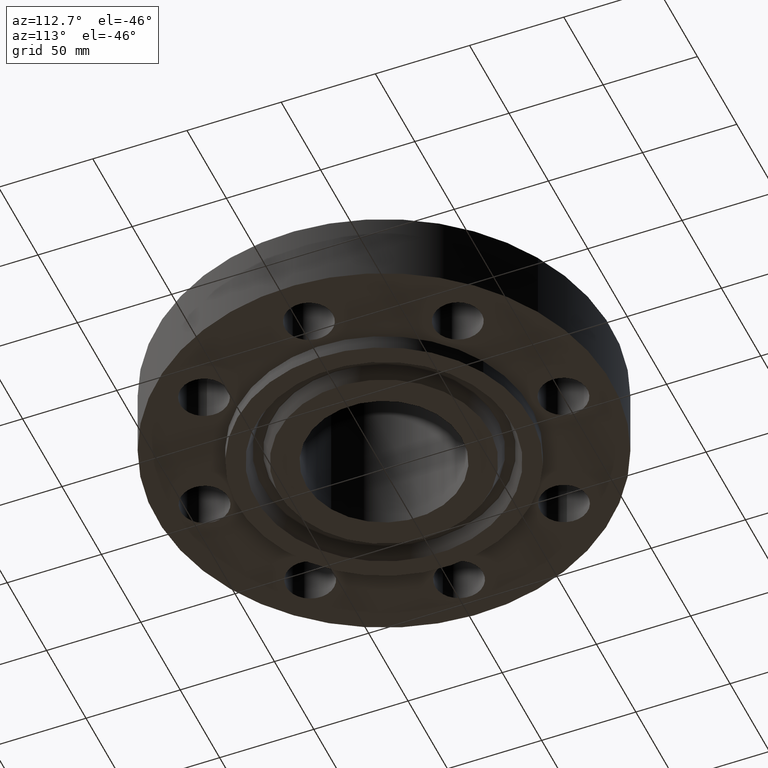
[diagram: clean part render]
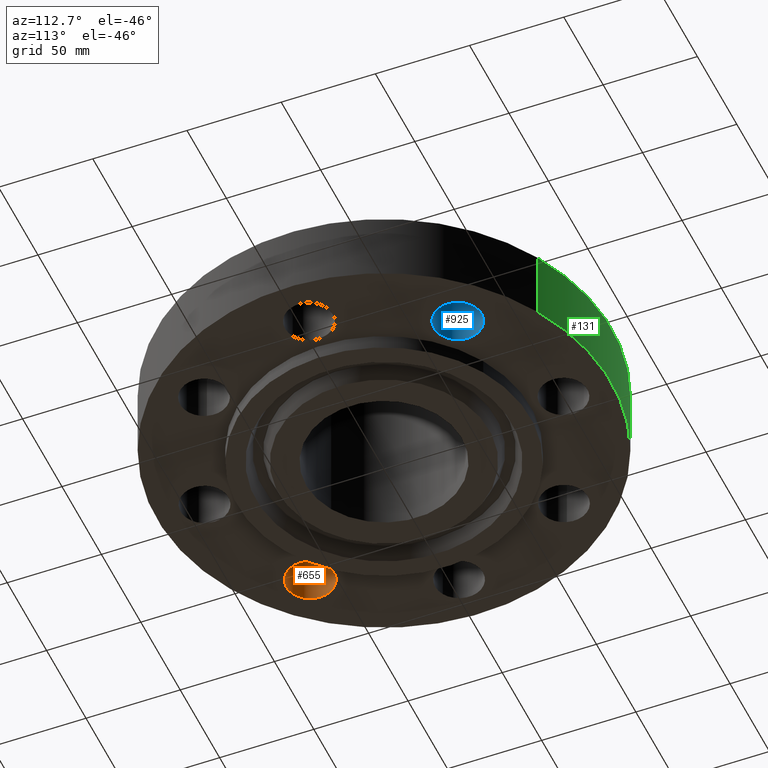
[diagram: same view with three faces highlighted in distinct colors, each labeled with its STEP entity id]
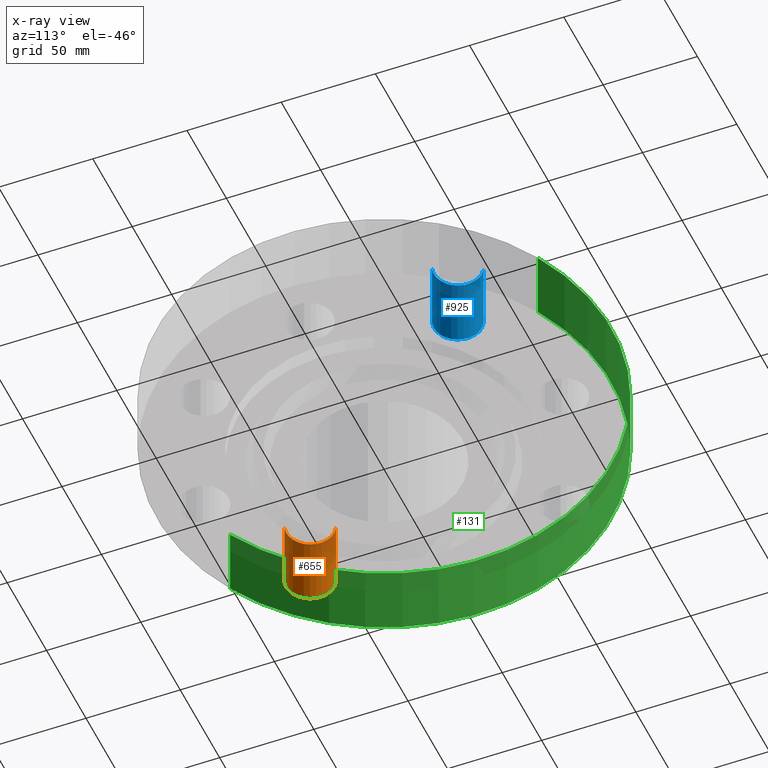
[diagram: x-ray of the same camera — body ghosted, the three highlighted faces saturated]
A machine part, auxiliary view with three faces highlighted in distinct colors.
The next image is the same camera in x-ray (body ghosted, the three faces saturated) — at least one of them is partly hidden behind the body in this view.
Their STEP definitions:

[orange] entity #655 — the highlighted cylindrical surface (edge-blend (fillet) strip) has radius 12.7 mm, axis along (0, 0, -1).
#572=AXIS2_PLACEMENT_3D('Circle Axis2P3D',#570,#571,$) ;
#628=AXIS2_PLACEMENT_3D('Cylinder Axis2P3D',#625,#626,#627) ;
#646=AXIS2_PLACEMENT_3D('Circle Axis2P3D',#644,#645,$) ;
#570=CARTESIAN_POINT('Axis2P3D Location',(-2.65165042946,-2.65165042946,0.)) ;
#574=CARTESIAN_POINT('Vertex',(-2.51088066389,-3.13142524445,0.)) ;
#576=CARTESIAN_POINT('Vertex',(-2.79242019503,-2.17187561447,0.)) ;
#625=CARTESIAN_POINT('Axis2P3D Location',(-2.65165042946,-2.65165042946,1.49606299213)) ;
#630=CARTESIAN_POINT('Line Origine',(-2.51088066389,-3.13142524445,0.750000000003)) ;
#634=CARTESIAN_POINT('Vertex',(-2.51088066389,-3.13142524445,1.50000000001)) ;
#637=CARTESIAN_POINT('Line Origine',(-2.79242019503,-2.17187561447,0.750000000003)) ;
#641=CARTESIAN_POINT('Vertex',(-2.79242019503,-2.17187561447,1.50000000001)) ;
#644=CARTESIAN_POINT('Axis2P3D Location',(-2.65165042946,-2.65165042946,1.50000000001)) ;
#571=DIRECTION('Axis2P3D Direction',(0.,0.,-0.0393700787402)) ;
#626=DIRECTION('Axis2P3D Direction',(0.,0.,-0.0393700787402)) ;
#627=DIRECTION('Axis2P3D XDirection',(-0.0110842335096,0.0377775444876,0.)) ;
#631=DIRECTION('Vector Direction',(0.,0.,-0.0393700787402)) ;
#638=DIRECTION('Vector Direction',(0.,0.,-0.0393700787402)) ;
#645=DIRECTION('Axis2P3D Direction',(0.,0.,-0.0393700787402)) ;
#632=VECTOR('Line Direction',#631,0.0393700787402) ;
#639=VECTOR('Line Direction',#638,0.0393700787402) ;
#650=ORIENTED_EDGE('',*,*,#636,.F.) ;
#651=ORIENTED_EDGE('',*,*,#578,.T.) ;
#652=ORIENTED_EDGE('',*,*,#643,.T.) ;
#653=ORIENTED_EDGE('',*,*,#648,.F.) ;
#655=ADVANCED_FACE('PartBody',(#654),#629,.F.) ;
#573=CIRCLE('generated circle',#572,0.500000000002) ;
#647=CIRCLE('generated circle',#646,0.500000000002) ;
#629=CYLINDRICAL_SURFACE('generated cylinder',#628,0.500000000002) ;
#578=EDGE_CURVE('',#575,#577,#573,.T.) ;
#636=EDGE_CURVE('',#575,#635,#633,.F.) ;
#643=EDGE_CURVE('',#577,#642,#640,.F.) ;
#648=EDGE_CURVE('',#635,#642,#647,.T.) ;
#649=EDGE_LOOP('',(#650,#651,#652,#653)) ;
#654=FACE_OUTER_BOUND('',#649,.T.) ;
#633=LINE('Line',#630,#632) ;
#640=LINE('Line',#637,#639) ;
#575=VERTEX_POINT('',#574) ;
#577=VERTEX_POINT('',#576) ;
#635=VERTEX_POINT('',#634) ;
#642=VERTEX_POINT('',#641) ;

[blue] entity #925 — the highlighted cylindrical surface (edge-blend (fillet) strip) has radius 12.7 mm, axis along (0, -0, -1).
#509=AXIS2_PLACEMENT_3D('Circle Axis2P3D',#507,#508,$) ;
#886=AXIS2_PLACEMENT_3D('Cylinder Axis2P3D',#883,#884,#885) ;
#916=AXIS2_PLACEMENT_3D('Circle Axis2P3D',#914,#915,$) ;
#502=CARTESIAN_POINT('Vertex',(2.51088066389,3.13142524445,0.)) ;
#504=CARTESIAN_POINT('Vertex',(2.79242019503,2.17187561447,0.)) ;
#507=CARTESIAN_POINT('Axis2P3D Location',(2.65165042946,2.65165042946,0.)) ;
#883=CARTESIAN_POINT('Axis2P3D Location',(2.65165042946,2.65165042946,1.49606299213)) ;
#888=CARTESIAN_POINT('Line Origine',(2.51088066389,3.13142524445,0.750000000003)) ;
#892=CARTESIAN_POINT('Vertex',(2.51088066389,3.13142524445,1.50000000001)) ;
#895=CARTESIAN_POINT('Line Origine',(2.79242019503,2.17187561447,0.750000000003)) ;
#899=CARTESIAN_POINT('Vertex',(2.79242019503,2.17187561447,1.50000000001)) ;
#914=CARTESIAN_POINT('Axis2P3D Location',(2.65165042946,2.65165042946,1.50000000001)) ;
#508=DIRECTION('Axis2P3D Direction',(0.,0.,-0.0393700787402)) ;
#884=DIRECTION('Axis2P3D Direction',(0.,-0.,-0.0393700787402)) ;
#885=DIRECTION('Axis2P3D XDirection',(0.0110842335096,-0.0377775444876,0.)) ;
#889=DIRECTION('Vector Direction',(0.,0.,-0.0393700787402)) ;
#896=DIRECTION('Vector Direction',(0.,0.,-0.0393700787402)) ;
#915=DIRECTION('Axis2P3D Direction',(0.,-0.,-0.0393700787402)) ;
#890=VECTOR('Line Direction',#889,0.0393700787402) ;
#897=VECTOR('Line Direction',#896,0.0393700787402) ;
#920=ORIENTED_EDGE('',*,*,#901,.F.) ;
#921=ORIENTED_EDGE('',*,*,#511,.T.) ;
#922=ORIENTED_EDGE('',*,*,#894,.T.) ;
#923=ORIENTED_EDGE('',*,*,#918,.F.) ;
#925=ADVANCED_FACE('PartBody',(#924),#887,.F.) ;
#510=CIRCLE('generated circle',#509,0.500000000002) ;
#917=CIRCLE('generated circle',#916,0.500000000002) ;
#887=CYLINDRICAL_SURFACE('generated cylinder',#886,0.500000000002) ;
#511=EDGE_CURVE('',#505,#503,#510,.T.) ;
#894=EDGE_CURVE('',#503,#893,#891,.F.) ;
#901=EDGE_CURVE('',#505,#900,#898,.F.) ;
#918=EDGE_CURVE('',#900,#893,#917,.T.) ;
#919=EDGE_LOOP('',(#920,#921,#922,#923)) ;
#924=FACE_OUTER_BOUND('',#919,.T.) ;
#891=LINE('Line',#888,#890) ;
#898=LINE('Line',#895,#897) ;
#503=VERTEX_POINT('',#502) ;
#505=VERTEX_POINT('',#504) ;
#893=VERTEX_POINT('',#892) ;
#900=VERTEX_POINT('',#899) ;

[green] entity #131 — the highlighted cylindrical surface (partial cylindrical patch) has radius 120.65 mm, axis along (0, 0, -1).
#95=AXIS2_PLACEMENT_3D('Cylinder Axis2P3D',#92,#93,#94) ;
#99=AXIS2_PLACEMENT_3D('Circle Axis2P3D',#97,#98,$) ;
#115=AXIS2_PLACEMENT_3D('Circle Axis2P3D',#113,#114,$) ;
#92=CARTESIAN_POINT('Axis2P3D Location',(0.,0.,1.84375000001)) ;
#97=CARTESIAN_POINT('Axis2P3D Location',(0.,0.,5.59482469102E-016)) ;
#101=CARTESIAN_POINT('Vertex',(-2.27727130838,-4.168517169,5.59482469102E-016)) ;
#103=CARTESIAN_POINT('Vertex',(2.27727130838,4.168517169,5.59482469102E-016)) ;
#106=CARTESIAN_POINT('Line Origine',(-2.27727130838,-4.168517169,0.750000000003)) ;
#110=CARTESIAN_POINT('Vertex',(-2.27727130838,-4.168517169,1.50000000001)) ;
#113=CARTESIAN_POINT('Axis2P3D Location',(0.,0.,1.50000000001)) ;
#117=CARTESIAN_POINT('Vertex',(2.27727130838,4.168517169,1.50000000001)) ;
#120=CARTESIAN_POINT('Line Origine',(2.27727130838,4.168517169,0.750000000003)) ;
#93=DIRECTION('Axis2P3D Direction',(0.,0.,-0.0393700787402)) ;
#94=DIRECTION('Axis2P3D XDirection',(0.0188750212049,0.0345504945626,0.)) ;
#98=DIRECTION('Axis2P3D Direction',(0.,0.,-0.0393700787402)) ;
#107=DIRECTION('Vector Direction',(0.,0.,-0.0393700787402)) ;
#114=DIRECTION('Axis2P3D Direction',(0.,0.,-0.0393700787402)) ;
#121=DIRECTION('Vector Direction',(0.,0.,-0.0393700787402)) ;
#108=VECTOR('Line Direction',#107,0.0393700787402) ;
#122=VECTOR('Line Direction',#121,0.0393700787402) ;
#126=ORIENTED_EDGE('',*,*,#105,.F.) ;
#127=ORIENTED_EDGE('',*,*,#112,.T.) ;
#128=ORIENTED_EDGE('',*,*,#119,.T.) ;
#129=ORIENTED_EDGE('',*,*,#124,.F.) ;
#131=ADVANCED_FACE('PartBody',(#130),#96,.T.) ;
#100=CIRCLE('generated circle',#99,4.75000000002) ;
#116=CIRCLE('generated circle',#115,4.75000000002) ;
#96=CYLINDRICAL_SURFACE('generated cylinder',#95,4.75000000002) ;
#105=EDGE_CURVE('',#102,#104,#100,.T.) ;
#112=EDGE_CURVE('',#102,#111,#109,.F.) ;
#119=EDGE_CURVE('',#111,#118,#116,.T.) ;
#124=EDGE_CURVE('',#104,#118,#123,.F.) ;
#125=EDGE_LOOP('',(#126,#127,#128,#129)) ;
#130=FACE_OUTER_BOUND('',#125,.T.) ;
#109=LINE('Line',#106,#108) ;
#123=LINE('Line',#120,#122) ;
#102=VERTEX_POINT('',#101) ;
#104=VERTEX_POINT('',#103) ;
#111=VERTEX_POINT('',#110) ;
#118=VERTEX_POINT('',#117) ;